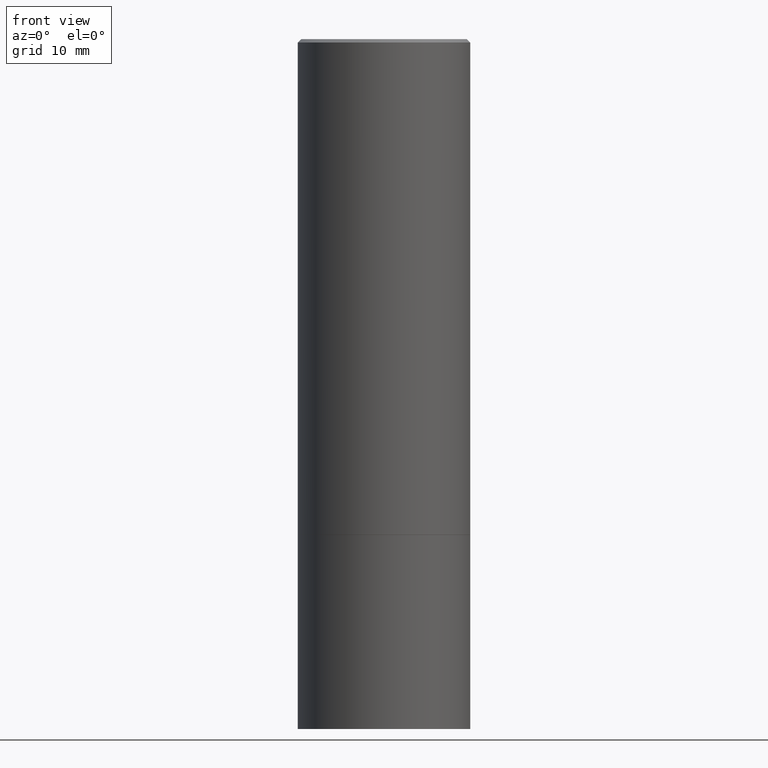
[diagram: clean part render]
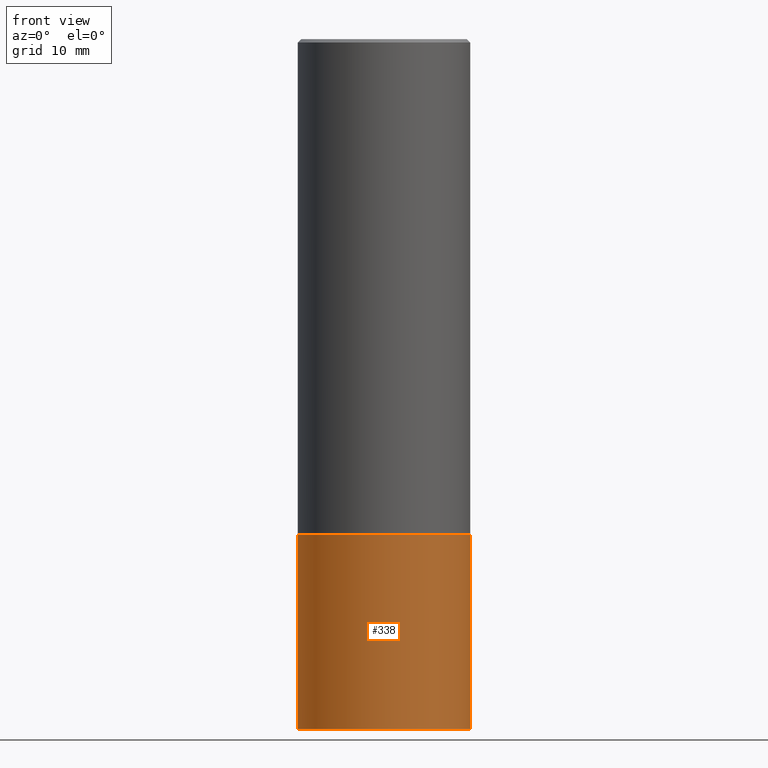
[diagram: same view with one face highlighted and labeled with its STEP entity id]
A machine part, front view. The second image highlights one B-rep face of the part: STEP entity #338.
In plain terms, the highlighted cylindrical surface (partial cylindrical patch) has radius 12.7 mm, axis along (-0, 0, 1).
Its self-contained STEP definition (entity closure, byte-faithful):
#8 = CARTESIAN_POINT ( 'NONE',  ( -0.5000000000000000000, 3.552713678800500929E-15, -2.459467545127452891E-29 ) ) ;
#13 = VERTEX_POINT ( 'NONE', #309 ) ;
#15 = AXIS2_PLACEMENT_3D ( 'NONE', #179, #41, #42 ) ;
#41 = DIRECTION ( 'NONE',  ( -2.445468806185136597E-29, 3.491481338843145583E-15, 1.000000000000000000 ) ) ;
#42 = DIRECTION ( 'NONE',  ( 1.000000000000000000, -6.982962677686266711E-15, 0.000000000000000000 ) ) ;
#45 = CARTESIAN_POINT ( 'NONE',  ( 0.000000000000000000, 0.000000000000000000, 0.000000000000000000 ) ) ;
#47 = EDGE_CURVE ( 'NONE', #174, #130, #278, .T. ) ;
#49 = ORIENTED_EDGE ( 'NONE', *, *, #47, .F. ) ;
#53 = VECTOR ( 'NONE', #324, 39.37007874015748143 ) ;
#61 = EDGE_CURVE ( 'NONE', #213, #130, #161, .T. ) ;
#65 = CARTESIAN_POINT ( 'NONE',  ( 0.5000000000000000000, -1.745740669421571411E-14, -4.000000000000000000 ) ) ;
#74 = DIRECTION ( 'NONE',  ( 1.000000000000000000, -6.982962677686266711E-15, 4.876176775795935793E-29 ) ) ;
#78 = AXIS2_PLACEMENT_3D ( 'NONE', #45, #210, #74 ) ;
#81 = EDGE_CURVE ( 'NONE', #13, #174, #270, .T. ) ;
#90 = CARTESIAN_POINT ( 'NONE',  ( 0.5000000000000000000, -3.491481338843133355E-15, 2.438088387897967896E-29 ) ) ;
#114 = ORIENTED_EDGE ( 'NONE', *, *, #212, .T. ) ;
#130 = VERTEX_POINT ( 'NONE', #351 ) ;
#151 = DIRECTION ( 'NONE',  ( -2.445468806185136877E-29, 3.491481338843145188E-15, 1.000000000000000000 ) ) ;
#161 = LINE ( 'NONE', #90, #215 ) ;
#174 = VERTEX_POINT ( 'NONE', #224 ) ;
#179 = CARTESIAN_POINT ( 'NONE',  ( 7.030722817782267716E-29, -1.003800884917404311E-14, -2.875000000000000000 ) ) ;
#207 = CIRCLE ( 'NONE', #251, 0.5000000000000000000 ) ;
#210 = DIRECTION ( 'NONE',  ( -2.445468806185136597E-29, 3.491481338843145583E-15, 1.000000000000000000 ) ) ;
#212 = EDGE_CURVE ( 'NONE', #13, #213, #207, .T. ) ;
#213 = VERTEX_POINT ( 'NONE', #65 ) ;
#215 = VECTOR ( 'NONE', #151, 39.37007874015748143 ) ;
#224 = CARTESIAN_POINT ( 'NONE',  ( -0.5000000000000000000, -8.449253423472813367E-15, -2.875000000000000000 ) ) ;
#248 = CYLINDRICAL_SURFACE ( 'NONE', #78, 0.5000000000000000000 ) ;
#251 = AXIS2_PLACEMENT_3D ( 'NONE', #263, #323, #317 ) ;
#258 = ORIENTED_EDGE ( 'NONE', *, *, #81, .F. ) ;
#263 = CARTESIAN_POINT ( 'NONE',  ( 9.781875224740546387E-29, -1.396592535537258233E-14, -4.000000000000000000 ) ) ;
#270 = LINE ( 'NONE', #8, #53 ) ;
#276 = ORIENTED_EDGE ( 'NONE', *, *, #61, .T. ) ;
#278 = CIRCLE ( 'NONE', #15, 0.5000000000000000000 ) ;
#286 = EDGE_LOOP ( 'NONE', ( #258, #114, #276, #49 ) ) ;
#300 = FACE_OUTER_BOUND ( 'NONE', #286, .T. ) ;
#309 = CARTESIAN_POINT ( 'NONE',  ( -0.5000000000000000000, -8.449253423472813367E-15, -4.000000000000000000 ) ) ;
#317 = DIRECTION ( 'NONE',  ( 1.000000000000000000, -6.982962677686266711E-15, 0.000000000000000000 ) ) ;
#323 = DIRECTION ( 'NONE',  ( -2.445468806185136597E-29, 3.491481338843145583E-15, 1.000000000000000000 ) ) ;
#324 = DIRECTION ( 'NONE',  ( -2.445468806185136877E-29, 3.491481338843145188E-15, 1.000000000000000000 ) ) ;
#338 = ADVANCED_FACE ( 'NONE', ( #300 ), #248, .T. ) ;
#351 = CARTESIAN_POINT ( 'NONE',  ( 0.5000000000000000000, -1.352949018801717646E-14, -2.875000000000000000 ) ) ;